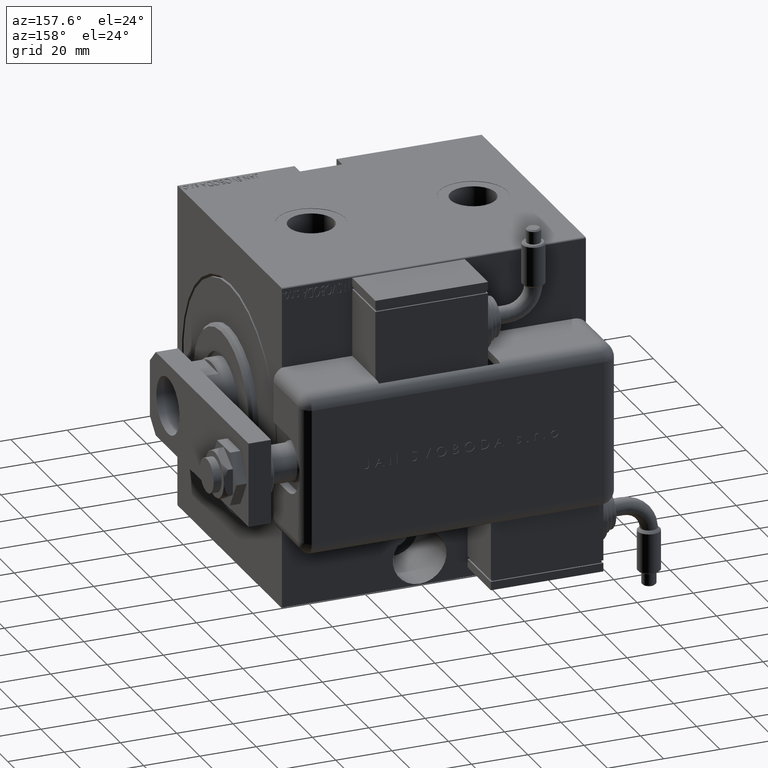
[diagram: clean part render]
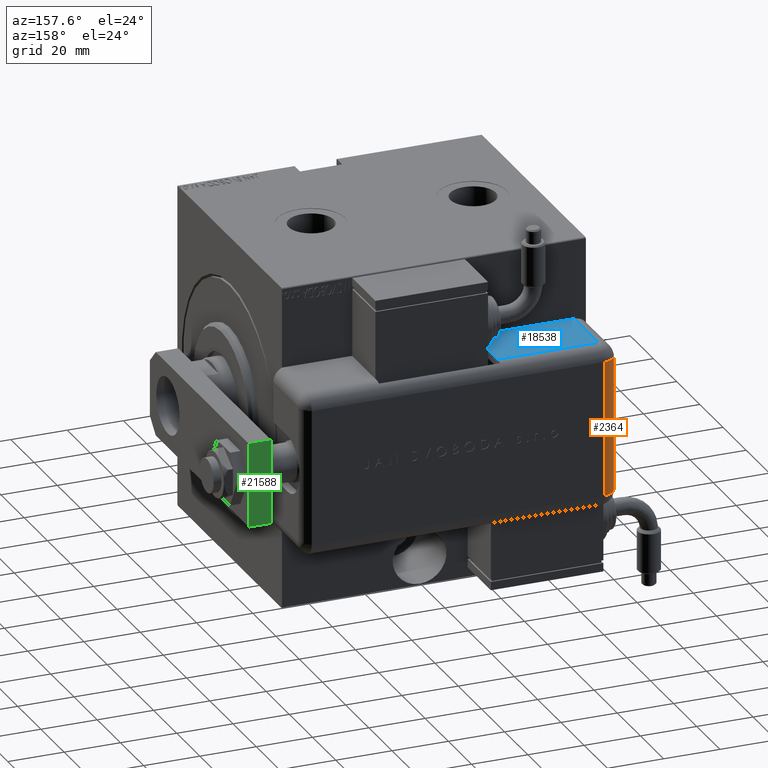
[diagram: same view with three faces highlighted in distinct colors, each labeled with its STEP entity id]
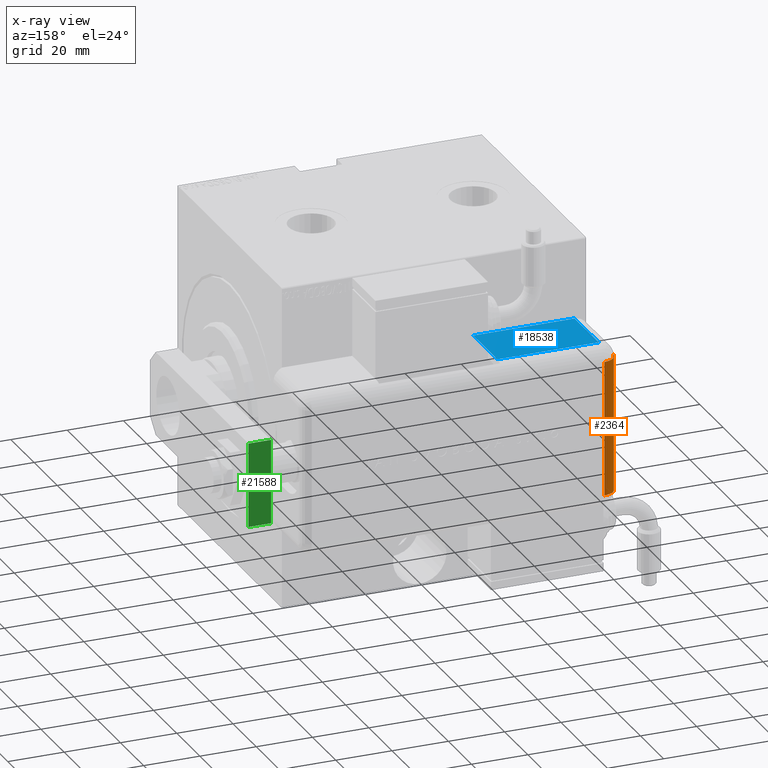
[diagram: x-ray of the same camera — body ghosted, the three highlighted faces saturated]
A machine part, auxiliary view with three faces highlighted in distinct colors.
The next image is the same camera in x-ray (body ghosted, the three faces saturated) — at least one of them is partly hidden behind the body in this view.
Their STEP definitions:

[orange] entity #2364 — the highlighted cylindrical surface (edge-blend (fillet) strip) has radius 5 mm, axis along (0, 0, -1).
#254 = DIRECTION ( 'NONE',  ( 1.000000000000000000, -0.000000000000000000, 0.000000000000000000 ) ) ;
#359 = DIRECTION ( 'NONE',  ( 1.000000000000000000, -0.000000000000000000, 0.000000000000000000 ) ) ;
#830 = VERTEX_POINT ( 'NONE', #41406 ) ;
#2364 = ADVANCED_FACE ( 'NONE', ( #7916 ), #54217, .T. ) ;
#2787 = CIRCLE ( 'NONE', #55306, 5.000000000000000000 ) ;
#4586 = VECTOR ( 'NONE', #57902, 1000.000000000000000 ) ;
#4986 = CARTESIAN_POINT ( 'NONE',  ( -23.99999999999999645, 25.79999999999998295, 5.000000000000004441 ) ) ;
#5157 = LINE ( 'NONE', #10316, #18892 ) ;
#6052 = CARTESIAN_POINT ( 'NONE',  ( 23.00000000000000000, 20.79999999999998295, 5.000000000000004441 ) ) ;
#7782 = EDGE_LOOP ( 'NONE', ( #52704, #44453, #31075, #21416, #37441, #28062 ) ) ;
#7916 = FACE_OUTER_BOUND ( 'NONE', #7782, .T. ) ;
#9044 = VERTEX_POINT ( 'NONE', #4986 ) ;
#10316 = CARTESIAN_POINT ( 'NONE',  ( -23.99999999999999645, 25.79999999999998295, 5.000000000000004441 ) ) ;
#10840 = DIRECTION ( 'NONE',  ( 1.000000000000000000, -0.000000000000000000, -0.000000000000000000 ) ) ;
#11393 = EDGE_CURVE ( 'NONE', #34332, #20021, #46098, .T. ) ;
#12017 = LINE ( 'NONE', #26047, #41571 ) ;
#13830 = CARTESIAN_POINT ( 'NONE',  ( 23.00000000000000000, 20.79999999999998295, 1.734723475976807094E-15 ) ) ;
#13963 = CARTESIAN_POINT ( 'NONE',  ( -23.99999999999999645, 20.79999999999998295, 5.000000000000002665 ) ) ;
#17658 = EDGE_CURVE ( 'NONE', #58736, #9044, #29669, .T. ) ;
#17664 = VERTEX_POINT ( 'NONE', #32244 ) ;
#18892 = VECTOR ( 'NONE', #51759, 1000.000000000000000 ) ;
#19877 = EDGE_CURVE ( 'NONE', #17664, #9044, #5157, .T. ) ;
#20021 = VERTEX_POINT ( 'NONE', #13830 ) ;
#21416 = ORIENTED_EDGE ( 'NONE', *, *, #17658, .T. ) ;
#23109 = DIRECTION ( 'NONE',  ( 0.000000000000000000, 0.000000000000000000, -1.000000000000000000 ) ) ;
#25654 = AXIS2_PLACEMENT_3D ( 'NONE', #6052, #43226, #48095 ) ;
#26047 = CARTESIAN_POINT ( 'NONE',  ( 23.99999999999999289, 20.79999999999998295, 0.000000000000000000 ) ) ;
#26827 = EDGE_CURVE ( 'NONE', #58736, #20021, #12017, .T. ) ;
#28062 = ORIENTED_EDGE ( 'NONE', *, *, #58446, .F. ) ;
#29669 = CIRCLE ( 'NONE', #36471, 5.000000000000000000 ) ;
#31075 = ORIENTED_EDGE ( 'NONE', *, *, #26827, .F. ) ;
#32244 = CARTESIAN_POINT ( 'NONE',  ( 23.99999999999999289, 25.79999999999998295, 5.000000000000004441 ) ) ;
#34090 = CARTESIAN_POINT ( 'NONE',  ( -23.99999999999999645, 20.79999999999998295, 0.000000000000000000 ) ) ;
#34332 = VERTEX_POINT ( 'NONE', #40415 ) ;
#36471 = AXIS2_PLACEMENT_3D ( 'NONE', #13963, #254, #23109 ) ;
#37441 = ORIENTED_EDGE ( 'NONE', *, *, #19877, .F. ) ;
#37535 = DIRECTION ( 'NONE',  ( 0.000000000000000000, 0.000000000000000000, -1.000000000000000000 ) ) ;
#37843 = CARTESIAN_POINT ( 'NONE',  ( 23.99999999999999289, 20.79999999999998295, 5.000000000000000000 ) ) ;
#38435 = AXIS2_PLACEMENT_3D ( 'NONE', #48783, #53917, #49671 ) ;
#40415 = CARTESIAN_POINT ( 'NONE',  ( 23.00000000000000000, 21.00000000000000000, 0.004001601281286050471 ) ) ;
#41406 = CARTESIAN_POINT ( 'NONE',  ( 23.99999999999999289, 21.00000000000000000, 0.004001601281283882067 ) ) ;
#41571 = VECTOR ( 'NONE', #10840, 1000.000000000000000 ) ;
#43226 = DIRECTION ( 'NONE',  ( -1.000000000000000000, -0.000000000000000000, 0.000000000000000000 ) ) ;
#43607 = LINE ( 'NONE', #47889, #4586 ) ;
#44453 = ORIENTED_EDGE ( 'NONE', *, *, #11393, .T. ) ;
#46098 = CIRCLE ( 'NONE', #25654, 5.000000000000000000 ) ;
#47889 = CARTESIAN_POINT ( 'NONE',  ( -28.99999999999999645, 21.00000000000000000, 0.004001601281286050471 ) ) ;
#48095 = DIRECTION ( 'NONE',  ( 0.000000000000000000, 1.526556658859590243E-14, -1.000000000000000000 ) ) ;
#48783 = CARTESIAN_POINT ( 'NONE',  ( -28.99999999999999645, 20.79999999999998295, 5.000000000000004441 ) ) ;
#49671 = DIRECTION ( 'NONE',  ( 0.000000000000000000, 0.000000000000000000, -1.000000000000000000 ) ) ;
#50297 = EDGE_CURVE ( 'NONE', #34332, #830, #43607, .T. ) ;
#51759 = DIRECTION ( 'NONE',  ( -1.000000000000000000, 0.000000000000000000, 0.000000000000000000 ) ) ;
#52704 = ORIENTED_EDGE ( 'NONE', *, *, #50297, .F. ) ;
#53917 = DIRECTION ( 'NONE',  ( 1.000000000000000000, 0.000000000000000000, 0.000000000000000000 ) ) ;
#54217 = CYLINDRICAL_SURFACE ( 'NONE', #38435, 5.000000000000000000 ) ;
#55306 = AXIS2_PLACEMENT_3D ( 'NONE', #37843, #359, #37535 ) ;
#57902 = DIRECTION ( 'NONE',  ( 1.000000000000000000, 0.000000000000000000, 0.000000000000000000 ) ) ;
#58446 = EDGE_CURVE ( 'NONE', #830, #17664, #2787, .T. ) ;
#58736 = VERTEX_POINT ( 'NONE', #34090 ) ;

[blue] entity #18538 — the highlighted planar face has unit normal (0, 0, -1).
#289 = LINE ( 'NONE', #9434, #11596 ) ;
#1714 = LINE ( 'NONE', #30325, #53949 ) ;
#5423 = ORIENTED_EDGE ( 'NONE', *, *, #33085, .T. ) ;
#8197 = FACE_OUTER_BOUND ( 'NONE', #15372, .T. ) ;
#9240 = ORIENTED_EDGE ( 'NONE', *, *, #21245, .T. ) ;
#9434 = CARTESIAN_POINT ( 'NONE',  ( -28.99999999999999645, -1.040834085586084257E-14, 5.000000000000004441 ) ) ;
#10802 = CARTESIAN_POINT ( 'NONE',  ( -28.99999999999999645, 20.79999999999998295, 5.000000000000004441 ) ) ;
#11429 = EDGE_CURVE ( 'NONE', #18729, #48872, #53243, .T. ) ;
#11505 = CARTESIAN_POINT ( 'NONE',  ( -28.99999999999999645, 22.99999999999998934, 41.00000000000000711 ) ) ;
#11596 = VECTOR ( 'NONE', #23442, 1000.000000000000000 ) ;
#12986 = DIRECTION ( 'NONE',  ( 0.000000000000000000, -1.000000000000000000, 0.000000000000000000 ) ) ;
#14960 = VECTOR ( 'NONE', #12986, 1000.000000000000000 ) ;
#15372 = EDGE_LOOP ( 'NONE', ( #26536, #26017, #9240, #5423 ) ) ;
#17630 = DIRECTION ( 'NONE',  ( -0.000000000000000000, 0.000000000000000000, -1.000000000000000000 ) ) ;
#18538 = ADVANCED_FACE ( 'NONE', ( #8197 ), #41107, .F. ) ;
#18683 = CARTESIAN_POINT ( 'NONE',  ( -28.99999999999999645, -9.421223957302265857E-15, 41.00000000000000711 ) ) ;
#18729 = VERTEX_POINT ( 'NONE', #43519 ) ;
#20879 = DIRECTION ( 'NONE',  ( 0.000000000000000000, 0.000000000000000000, -1.000000000000000000 ) ) ;
#21245 = EDGE_CURVE ( 'NONE', #18729, #54314, #1714, .T. ) ;
#22445 = VECTOR ( 'NONE', #52988, 1000.000000000000000 ) ;
#23442 = DIRECTION ( 'NONE',  ( 0.000000000000000000, -1.000000000000000000, 0.000000000000000000 ) ) ;
#26017 = ORIENTED_EDGE ( 'NONE', *, *, #11429, .F. ) ;
#26536 = ORIENTED_EDGE ( 'NONE', *, *, #40987, .F. ) ;
#26800 = CARTESIAN_POINT ( 'NONE',  ( -28.99999999999999645, 25.79999999999998295, 109.0000000000000000 ) ) ;
#30305 = CARTESIAN_POINT ( 'NONE',  ( -28.99999999999999645, -9.421223957302265857E-15, 5.000000000000004441 ) ) ;
#30325 = CARTESIAN_POINT ( 'NONE',  ( -28.99999999999999645, 20.79999999999998295, 109.0000000000000000 ) ) ;
#31596 = AXIS2_PLACEMENT_3D ( 'NONE', #26800, #45376, #17630 ) ;
#33085 = EDGE_CURVE ( 'NONE', #54314, #57316, #289, .T. ) ;
#40987 = EDGE_CURVE ( 'NONE', #48872, #57316, #57557, .T. ) ;
#41107 = PLANE ( 'NONE',  #31596 ) ;
#43519 = CARTESIAN_POINT ( 'NONE',  ( -28.99999999999999645, 20.79999999999998295, 41.00000000000000711 ) ) ;
#45376 = DIRECTION ( 'NONE',  ( 1.000000000000000000, 0.000000000000000000, -0.000000000000000000 ) ) ;
#48872 = VERTEX_POINT ( 'NONE', #18683 ) ;
#52988 = DIRECTION ( 'NONE',  ( -0.000000000000000000, -0.000000000000000000, -1.000000000000000000 ) ) ;
#53243 = LINE ( 'NONE', #11505, #14960 ) ;
#53872 = CARTESIAN_POINT ( 'NONE',  ( -28.99999999999999645, -9.421223957302265857E-15, 109.0000000000000000 ) ) ;
#53949 = VECTOR ( 'NONE', #20879, 1000.000000000000000 ) ;
#54314 = VERTEX_POINT ( 'NONE', #10802 ) ;
#57316 = VERTEX_POINT ( 'NONE', #30305 ) ;
#57557 = LINE ( 'NONE', #53872, #22445 ) ;

[green] entity #21588 — the highlighted planar face has unit normal (0, -1, 0).
#630 = EDGE_CURVE ( 'NONE', #47924, #36803, #32923, .T. ) ;
#7040 = DIRECTION ( 'NONE',  ( 0.000000000000000000, -0.000000000000000000, -1.000000000000000000 ) ) ;
#7627 = DIRECTION ( 'NONE',  ( 0.000000000000000000, -1.000000000000000000, 0.000000000000000000 ) ) ;
#12963 = ORIENTED_EDGE ( 'NONE', *, *, #630, .T. ) ;
#14341 = DIRECTION ( 'NONE',  ( -0.000000000000000000, -0.000000000000000000, -1.000000000000000000 ) ) ;
#15961 = ORIENTED_EDGE ( 'NONE', *, *, #43296, .F. ) ;
#16551 = CARTESIAN_POINT ( 'NONE',  ( 15.00000000000000178, 85.00000000000000000, 0.000000000000000000 ) ) ;
#17081 = CARTESIAN_POINT ( 'NONE',  ( -15.00000000000000000, 85.00000000000000000, 8.000000000000000000 ) ) ;
#18111 = CARTESIAN_POINT ( 'NONE',  ( 15.00000000000000178, 85.00000000000000000, 0.000000000000000000 ) ) ;
#21428 = VERTEX_POINT ( 'NONE', #23284 ) ;
#21588 = ADVANCED_FACE ( 'NONE', ( #25919 ), #54526, .F. ) ;
#23284 = CARTESIAN_POINT ( 'NONE',  ( -15.00000000000000000, 85.00000000000000000, 8.000000000000000000 ) ) ;
#25919 = FACE_OUTER_BOUND ( 'NONE', #27574, .T. ) ;
#27574 = EDGE_LOOP ( 'NONE', ( #48049, #15961, #58902, #12963 ) ) ;
#28071 = CARTESIAN_POINT ( 'NONE',  ( 15.00000000000000178, 85.00000000000000000, 8.000000000000000000 ) ) ;
#29258 = DIRECTION ( 'NONE',  ( -1.000000000000000000, 0.000000000000000000, 0.000000000000000000 ) ) ;
#29893 = CARTESIAN_POINT ( 'NONE',  ( 15.00000000000000178, 85.00000000000000000, 8.000000000000000000 ) ) ;
#31161 = LINE ( 'NONE', #16551, #37034 ) ;
#32923 = LINE ( 'NONE', #47868, #47087 ) ;
#33820 = CARTESIAN_POINT ( 'NONE',  ( 15.00000000000000178, 85.00000000000000000, 8.000000000000000000 ) ) ;
#35728 = DIRECTION ( 'NONE',  ( -1.000000000000000000, 0.000000000000000000, 0.000000000000000000 ) ) ;
#36803 = VERTEX_POINT ( 'NONE', #18111 ) ;
#37034 = VECTOR ( 'NONE', #35728, 1000.000000000000000 ) ;
#39554 = EDGE_CURVE ( 'NONE', #36803, #54756, #31161, .T. ) ;
#42376 = LINE ( 'NONE', #33820, #50102 ) ;
#43296 = EDGE_CURVE ( 'NONE', #21428, #54756, #45422, .T. ) ;
#44921 = EDGE_CURVE ( 'NONE', #47924, #21428, #42376, .T. ) ;
#45422 = LINE ( 'NONE', #17081, #49122 ) ;
#47087 = VECTOR ( 'NONE', #14341, 1000.000000000000000 ) ;
#47770 = CARTESIAN_POINT ( 'NONE',  ( -15.00000000000000000, 85.00000000000000000, 0.000000000000000000 ) ) ;
#47868 = CARTESIAN_POINT ( 'NONE',  ( 15.00000000000000178, 85.00000000000000000, 8.000000000000000000 ) ) ;
#47924 = VERTEX_POINT ( 'NONE', #28071 ) ;
#48049 = ORIENTED_EDGE ( 'NONE', *, *, #39554, .T. ) ;
#49122 = VECTOR ( 'NONE', #49992, 1000.000000000000000 ) ;
#49992 = DIRECTION ( 'NONE',  ( -0.000000000000000000, -0.000000000000000000, -1.000000000000000000 ) ) ;
#50102 = VECTOR ( 'NONE', #29258, 1000.000000000000000 ) ;
#54526 = PLANE ( 'NONE',  #57871 ) ;
#54756 = VERTEX_POINT ( 'NONE', #47770 ) ;
#57871 = AXIS2_PLACEMENT_3D ( 'NONE', #29893, #7627, #7040 ) ;
#58902 = ORIENTED_EDGE ( 'NONE', *, *, #44921, .F. ) ;